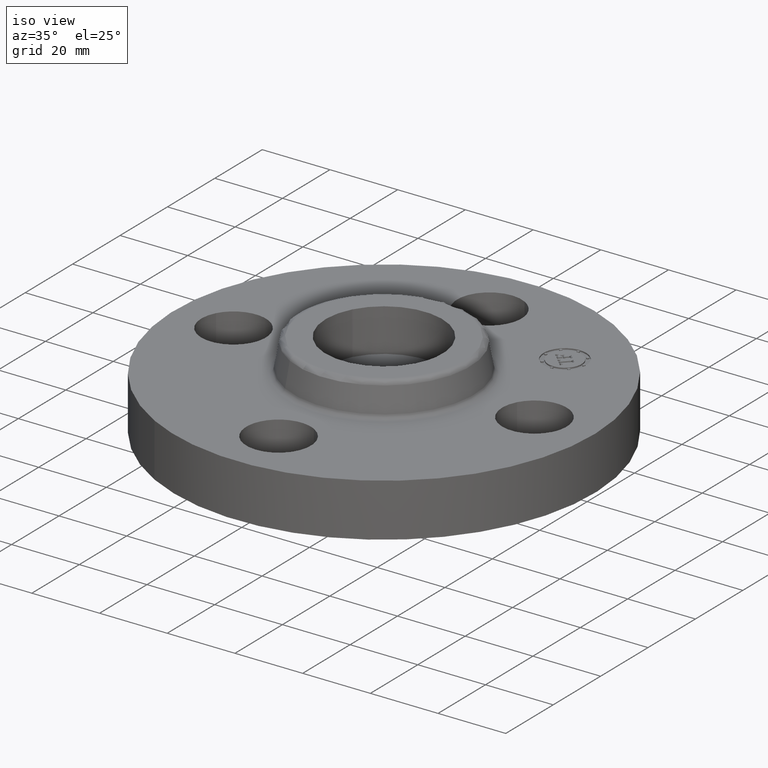
[diagram: clean part render]
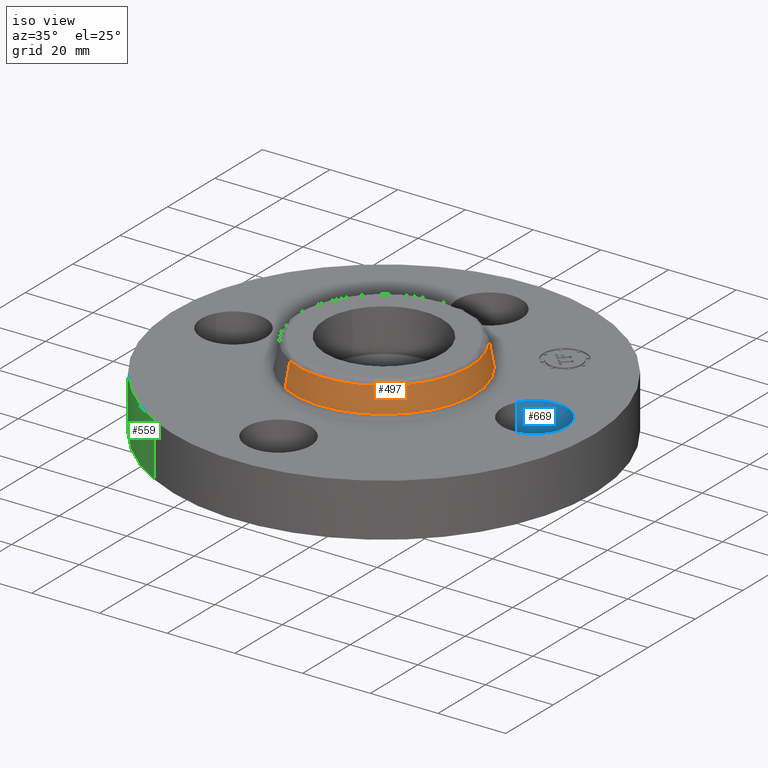
[diagram: same view with three faces highlighted in distinct colors, each labeled with its STEP entity id]
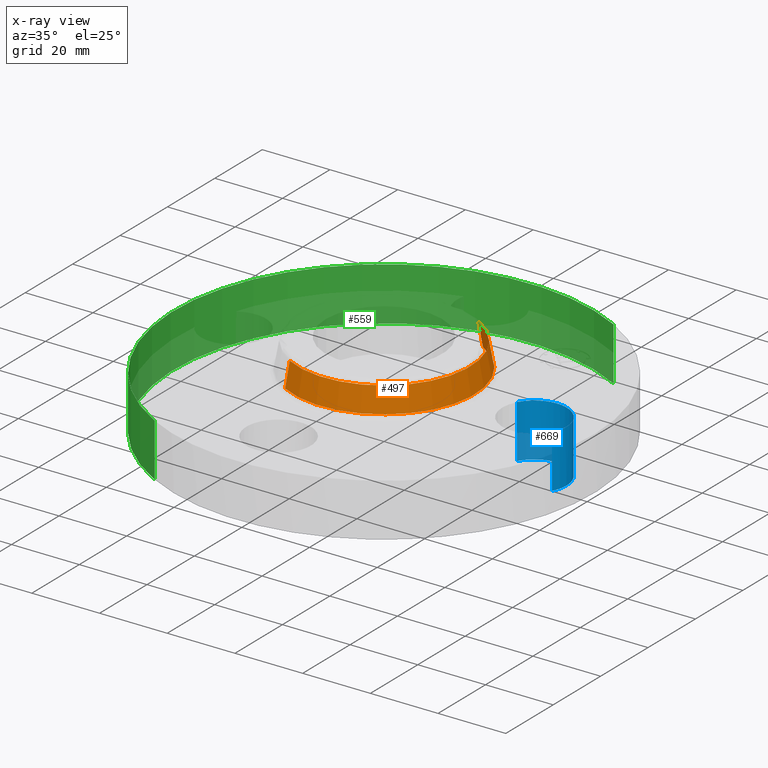
[diagram: x-ray of the same camera — body ghosted, the three highlighted faces saturated]
A machine part, iso view with three faces highlighted in distinct colors.
The next image is the same camera in x-ray (body ghosted, the three faces saturated) — at least one of them is partly hidden behind the body in this view.
Their STEP definitions:

[orange] entity #497 — the highlighted conical surface has half-angle 10 deg.
#310=AXIS2_PLACEMENT_3D('Circle Axis2P3D',#308,#309,$) ;
#470=AXIS2_PLACEMENT_3D('Cone Axis2P3D',#467,#468,#469) ;
#474=AXIS2_PLACEMENT_3D('Circle Axis2P3D',#472,#473,$) ;
#308=CARTESIAN_POINT('Axis2P3D Location',(0.,0.,0.950418890665)) ;
#312=CARTESIAN_POINT('Vertex',(0.480258892683,0.879108006299,0.950418890663)) ;
#314=CARTESIAN_POINT('Vertex',(-0.480258892683,-0.879108006299,0.950418890664)) ;
#467=CARTESIAN_POINT('Axis2P3D Location',(0.,0.,0.950418890664)) ;
#472=CARTESIAN_POINT('Axis2P3D Location',(0.,0.,0.669581109343)) ;
#476=CARTESIAN_POINT('Vertex',(0.503999699238,0.922565261201,0.669581109345)) ;
#478=CARTESIAN_POINT('Vertex',(-0.503999699238,-0.922565261201,0.669581109344)) ;
#481=CARTESIAN_POINT('Line Origine',(0.492129295958,0.900836633746,0.810000000002)) ;
#486=CARTESIAN_POINT('Line Origine',(-0.492129295958,-0.900836633746,0.810000000002)) ;
#309=DIRECTION('Axis2P3D Direction',(-0.,0.,-0.0393700787402)) ;
#468=DIRECTION('Axis2P3D Direction',(0.,0.,-0.0393700787402)) ;
#469=DIRECTION('Axis2P3D XDirection',(0.0188750212049,0.0345504945626,0.)) ;
#473=DIRECTION('Axis2P3D Direction',(-0.,0.,-0.0393700787402)) ;
#482=DIRECTION('Vector Direction',(0.00327761303565,0.00599963041827,-0.03877195878)) ;
#487=DIRECTION('Vector Direction',(-0.00327761303565,-0.00599963041827,-0.03877195878)) ;
#483=VECTOR('Line Direction',#482,0.0393700787402) ;
#488=VECTOR('Line Direction',#487,0.0393700787402) ;
#492=ORIENTED_EDGE('',*,*,#480,.F.) ;
#493=ORIENTED_EDGE('',*,*,#485,.T.) ;
#494=ORIENTED_EDGE('',*,*,#316,.T.) ;
#495=ORIENTED_EDGE('',*,*,#490,.F.) ;
#497=ADVANCED_FACE('PartBody',(#496),#471,.T.) ;
#311=CIRCLE('generated circle',#310,1.00173823464) ;
#475=CIRCLE('generated circle',#474,1.05125751269) ;
#471=CONICAL_SURFACE('Cone',#470,1.00173823464,0.174532925199) ;
#316=EDGE_CURVE('',#313,#315,#311,.T.) ;
#480=EDGE_CURVE('',#477,#479,#475,.T.) ;
#485=EDGE_CURVE('',#477,#313,#484,.F.) ;
#490=EDGE_CURVE('',#479,#315,#489,.F.) ;
#491=EDGE_LOOP('',(#492,#493,#494,#495)) ;
#496=FACE_OUTER_BOUND('',#491,.T.) ;
#484=LINE('Line',#481,#483) ;
#489=LINE('Line',#486,#488) ;
#313=VERTEX_POINT('',#312) ;
#315=VERTEX_POINT('',#314) ;
#477=VERTEX_POINT('',#476) ;
#479=VERTEX_POINT('',#478) ;

[blue] entity #669 — the highlighted cylindrical surface (partial cylindrical patch) has radius 9.525 mm, axis along (0, -0, -1).
#394=AXIS2_PLACEMENT_3D('Circle Axis2P3D',#392,#393,$) ;
#644=AXIS2_PLACEMENT_3D('Cylinder Axis2P3D',#641,#642,#643) ;
#387=CARTESIAN_POINT('Vertex',(2.07909346074,-0.179784576983,0.)) ;
#389=CARTESIAN_POINT('Vertex',(1.42090653927,0.179784576964,0.)) ;
#392=CARTESIAN_POINT('Axis2P3D Location',(1.75,-2.22543593352E-011,0.)) ;
#608=CARTESIAN_POINT('Line Origine',(2.07909346072,-0.179784576977,0.309999999994)) ;
#612=CARTESIAN_POINT('Vertex',(2.07909346074,-0.179784576955,0.620000000002)) ;
#615=CARTESIAN_POINT('Line Origine',(1.4209065393,0.179784576977,0.309999999994)) ;
#619=CARTESIAN_POINT('Vertex',(1.4209065393,0.179784576977,0.619999999987)) ;
#641=CARTESIAN_POINT('Axis2P3D Location',(1.75000000001,0.,0.616062992128)) ;
#647=CARTESIAN_POINT('Control Point',(1.4209065393,0.179784576977,0.620000000002)) ;
#648=CARTESIAN_POINT('Control Point',(1.44914703461,0.231478456903,0.620000000001)) ;
#649=CARTESIAN_POINT('Control Point',(1.48753759951,0.27762732854,0.620000000001)) ;
#650=CARTESIAN_POINT('Control Point',(1.53463466834,0.315564920645,0.62)) ;
#651=CARTESIAN_POINT('Control Point',(1.64116640576,0.370929207243,0.619999999998)) ;
#652=CARTESIAN_POINT('Control Point',(1.76072322347,0.38190110985,0.619999999997)) ;
#653=CARTESIAN_POINT('Control Point',(1.82085180885,0.375424381748,0.619999999996)) ;
#654=CARTESIAN_POINT('Control Point',(1.93532958528,0.339243530298,0.619999999995)) ;
#655=CARTESIAN_POINT('Control Point',(2.02762732855,0.262462400496,0.619999999993)) ;
#656=CARTESIAN_POINT('Control Point',(2.06556492066,0.215365331668,0.619999999992)) ;
#657=CARTESIAN_POINT('Control Point',(2.12092920725,0.108833594252,0.619999999991)) ;
#658=CARTESIAN_POINT('Control Point',(2.13190110986,-0.0107232234562,0.61999999999)) ;
#659=CARTESIAN_POINT('Control Point',(2.12542438176,-0.0708518088378,0.619999999989)) ;
#660=CARTESIAN_POINT('Control Point',(2.10733395603,-0.128090697051,0.619999999988)) ;
#661=CARTESIAN_POINT('Control Point',(2.07909346072,-0.179784576977,0.619999999987)) ;
#393=DIRECTION('Axis2P3D Direction',(0.,0.,-0.0393700787402)) ;
#609=DIRECTION('Vector Direction',(0.,0.,-0.0393700787402)) ;
#616=DIRECTION('Vector Direction',(0.,0.,-0.0393700787402)) ;
#642=DIRECTION('Axis2P3D Direction',(0.,-0.,-0.0393700787402)) ;
#643=DIRECTION('Axis2P3D XDirection',(-0.0345504945626,0.0188750212049,0.)) ;
#610=VECTOR('Line Direction',#609,0.0393700787402) ;
#617=VECTOR('Line Direction',#616,0.0393700787402) ;
#664=ORIENTED_EDGE('',*,*,#621,.F.) ;
#665=ORIENTED_EDGE('',*,*,#396,.T.) ;
#666=ORIENTED_EDGE('',*,*,#614,.T.) ;
#667=ORIENTED_EDGE('',*,*,#662,.F.) ;
#669=ADVANCED_FACE('PartBody',(#668),#645,.F.) ;
#646=B_SPLINE_CURVE_WITH_KNOTS('',5,(#647,#648,#649,#650,#651,#652,#653,#654,#655,#656,#657,#658,#659,#660,#661),.UNSPECIFIED.,.F.,.U.,(6,3,3,3,6),(-14.9618350128,-7.48091750638,0.,7.48091750638,14.9618350128),.UNSPECIFIED.) ;
#395=CIRCLE('generated circle',#394,0.375000000021) ;
#645=CYLINDRICAL_SURFACE('generated cylinder',#644,0.375000000001) ;
#396=EDGE_CURVE('',#390,#388,#395,.T.) ;
#614=EDGE_CURVE('',#388,#613,#611,.F.) ;
#621=EDGE_CURVE('',#390,#620,#618,.F.) ;
#662=EDGE_CURVE('',#620,#613,#646,.T.) ;
#663=EDGE_LOOP('',(#664,#665,#666,#667)) ;
#668=FACE_OUTER_BOUND('',#663,.T.) ;
#611=LINE('Line',#608,#610) ;
#618=LINE('Line',#615,#617) ;
#388=VERTEX_POINT('',#387) ;
#390=VERTEX_POINT('',#389) ;
#613=VERTEX_POINT('',#612) ;
#620=VERTEX_POINT('',#619) ;

[green] entity #559 — the highlighted cylindrical surface (partial cylindrical patch) has radius 61.976 mm, axis along (0, 0, -1).
#367=AXIS2_PLACEMENT_3D('Circle Axis2P3D',#365,#366,$) ;
#532=AXIS2_PLACEMENT_3D('Cylinder Axis2P3D',#529,#530,#531) ;
#543=AXIS2_PLACEMENT_3D('Circle Axis2P3D',#541,#542,$) ;
#365=CARTESIAN_POINT('Axis2P3D Location',(-8.39223703654E-016,-9.44270033993E-012,0.)) ;
#369=CARTESIAN_POINT('Vertex',(-1.16979831419,-2.14130145103,0.)) ;
#371=CARTESIAN_POINT('Vertex',(1.16979831419,2.14130145101,0.)) ;
#529=CARTESIAN_POINT('Axis2P3D Location',(0.,0.,0.500000000002)) ;
#534=CARTESIAN_POINT('Line Origine',(-1.1697983142,-2.14130145102,0.310000000025)) ;
#538=CARTESIAN_POINT('Vertex',(-1.1697983142,-2.14130145102,0.620000000018)) ;
#541=CARTESIAN_POINT('Axis2P3D Location',(0.,0.,0.620000000018)) ;
#545=CARTESIAN_POINT('Vertex',(1.1697983142,2.14130145102,0.620000000018)) ;
#548=CARTESIAN_POINT('Line Origine',(1.1697983142,2.14130145102,0.310000000025)) ;
#366=DIRECTION('Axis2P3D Direction',(0.,0.,-0.0393700787402)) ;
#530=DIRECTION('Axis2P3D Direction',(0.,0.,-0.0393700787402)) ;
#531=DIRECTION('Axis2P3D XDirection',(-0.0188750212049,-0.0345504945626,0.)) ;
#535=DIRECTION('Vector Direction',(0.,0.,-0.0393700787402)) ;
#542=DIRECTION('Axis2P3D Direction',(0.,0.,-0.0393700787402)) ;
#549=DIRECTION('Vector Direction',(0.,0.,-0.0393700787402)) ;
#536=VECTOR('Line Direction',#535,0.0393700787402) ;
#550=VECTOR('Line Direction',#549,0.0393700787402) ;
#554=ORIENTED_EDGE('',*,*,#373,.F.) ;
#555=ORIENTED_EDGE('',*,*,#540,.T.) ;
#556=ORIENTED_EDGE('',*,*,#547,.T.) ;
#557=ORIENTED_EDGE('',*,*,#552,.F.) ;
#559=ADVANCED_FACE('PartBody',(#558),#533,.T.) ;
#368=CIRCLE('generated circle',#367,2.44) ;
#544=CIRCLE('generated circle',#543,2.44000000001) ;
#533=CYLINDRICAL_SURFACE('generated cylinder',#532,2.44000000001) ;
#373=EDGE_CURVE('',#370,#372,#368,.T.) ;
#540=EDGE_CURVE('',#370,#539,#537,.F.) ;
#547=EDGE_CURVE('',#539,#546,#544,.T.) ;
#552=EDGE_CURVE('',#372,#546,#551,.F.) ;
#553=EDGE_LOOP('',(#554,#555,#556,#557)) ;
#558=FACE_OUTER_BOUND('',#553,.T.) ;
#537=LINE('Line',#534,#536) ;
#551=LINE('Line',#548,#550) ;
#370=VERTEX_POINT('',#369) ;
#372=VERTEX_POINT('',#371) ;
#539=VERTEX_POINT('',#538) ;
#546=VERTEX_POINT('',#545) ;